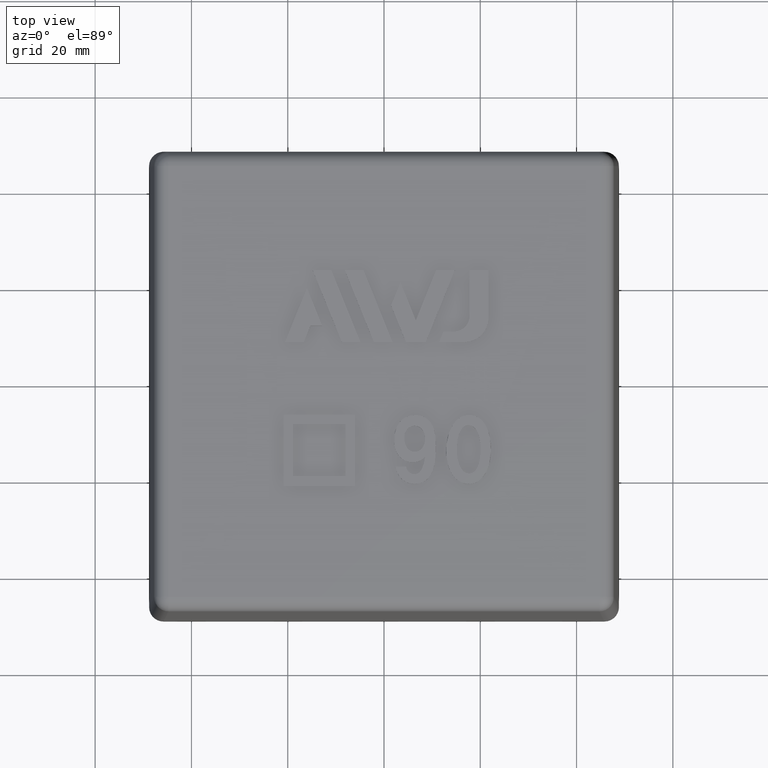
[diagram: clean part render]
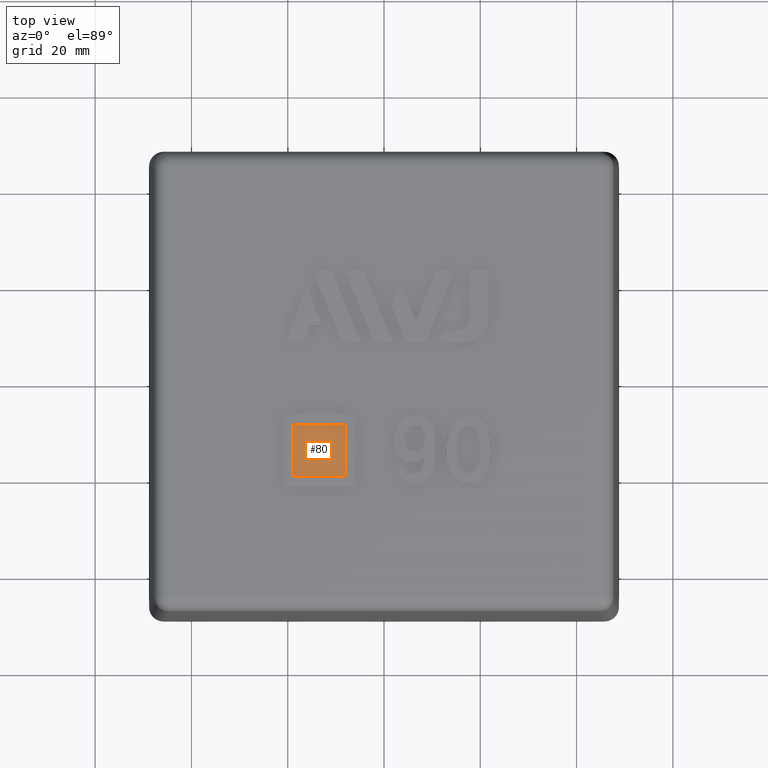
[diagram: same view with one face highlighted and labeled with its STEP entity id]
A machine part, top view. The second image highlights one B-rep face of the part: STEP entity #80.
In plain terms, the highlighted planar face has unit normal (0, 0, 1).
Its self-contained STEP definition (entity closure, byte-faithful):
#80 = ADVANCED_FACE( '', ( #171 ), #172, .T. );
#171 = FACE_OUTER_BOUND( '', #343, .T. );
#172 = PLANE( '', #344 );
#343 = EDGE_LOOP( '', ( #600, #601, #602, #603 ) );
#344 = AXIS2_PLACEMENT_3D( '', #604, #605, #606 );
#600 = ORIENTED_EDGE( '', *, *, #1204, .T. );
#601 = ORIENTED_EDGE( '', *, *, #1205, .T. );
#602 = ORIENTED_EDGE( '', *, *, #1206, .T. );
#603 = ORIENTED_EDGE( '', *, *, #1207, .T. );
#604 = CARTESIAN_POINT( '', ( -48.8000000000000, -48.8000000000000, 63.0000000000000 ) );
#605 = DIRECTION( '', ( 0.000000000000000, 0.000000000000000, 1.00000000000000 ) );
#606 = DIRECTION( '', ( 0.000000000000000, -1.00000000000000, 0.000000000000000 ) );
#1204 = EDGE_CURVE( '', #1427, #1428, #1429, .T. );
#1205 = EDGE_CURVE( '', #1428, #1430, #1431, .T. );
#1206 = EDGE_CURVE( '', #1430, #1432, #1433, .T. );
#1207 = EDGE_CURVE( '', #1432, #1427, #1434, .T. );
#1427 = VERTEX_POINT( '', #1847 );
#1428 = VERTEX_POINT( '', #1848 );
#1429 = B_SPLINE_CURVE_WITH_KNOTS( '', 2, ( #1849, #1850, #1851 ), .UNSPECIFIED., .F., .F., ( 3, 3 ), ( 3.00000000000000, 4.00000000000000 ), .UNSPECIFIED. );
#1430 = VERTEX_POINT( '', #1852 );
#1431 = B_SPLINE_CURVE_WITH_KNOTS( '', 2, ( #1853, #1854, #1855 ), .UNSPECIFIED., .F., .F., ( 3, 3 ), ( 0.000000000000000, 1.00000000000000 ), .UNSPECIFIED. );
#1432 = VERTEX_POINT( '', #1856 );
#1433 = B_SPLINE_CURVE_WITH_KNOTS( '', 2, ( #1857, #1858, #1859 ), .UNSPECIFIED., .F., .F., ( 3, 3 ), ( 1.00000000000000, 2.00000000000000 ), .UNSPECIFIED. );
#1434 = B_SPLINE_CURVE_WITH_KNOTS( '', 2, ( #1860, #1861, #1862 ), .UNSPECIFIED., .F., .F., ( 3, 3 ), ( 2.00000000000000, 3.00000000000000 ), .UNSPECIFIED. );
#1847 = CARTESIAN_POINT( '', ( -18.8814167613637, -8.91355454545463, 63.0000000000000 ) );
#1848 = CARTESIAN_POINT( '', ( -18.8814167613637, -19.7544636363637, 63.0000000000000 ) );
#1849 = CARTESIAN_POINT( '', ( -18.8814167613637, -8.91355454545463, 63.0000000000000 ) );
#1850 = CARTESIAN_POINT( '', ( -18.8814167613637, -14.3340090909091, 63.0000000000000 ) );
#1851 = CARTESIAN_POINT( '', ( -18.8814167613637, -19.7544636363637, 63.0000000000000 ) );
#1852 = CARTESIAN_POINT( '', ( -8.04050767045467, -19.7544636363637, 63.0000000000000 ) );
#1853 = CARTESIAN_POINT( '', ( -18.8814167613637, -19.7544636363637, 63.0000000000000 ) );
#1854 = CARTESIAN_POINT( '', ( -13.4609622159092, -19.7544636363637, 63.0000000000000 ) );
#1855 = CARTESIAN_POINT( '', ( -8.04050767045467, -19.7544636363637, 63.0000000000000 ) );
#1856 = CARTESIAN_POINT( '', ( -8.04050767045467, -8.91355454545463, 63.0000000000000 ) );
#1857 = CARTESIAN_POINT( '', ( -8.04050767045467, -19.7544636363637, 63.0000000000000 ) );
#1858 = CARTESIAN_POINT( '', ( -8.04050767045467, -14.3340090909091, 63.0000000000000 ) );
#1859 = CARTESIAN_POINT( '', ( -8.04050767045467, -8.91355454545463, 63.0000000000000 ) );
#1860 = CARTESIAN_POINT( '', ( -8.04050767045467, -8.91355454545463, 63.0000000000000 ) );
#1861 = CARTESIAN_POINT( '', ( -13.4609622159092, -8.91355454545463, 63.0000000000000 ) );
#1862 = CARTESIAN_POINT( '', ( -18.8814167613637, -8.91355454545463, 63.0000000000000 ) );